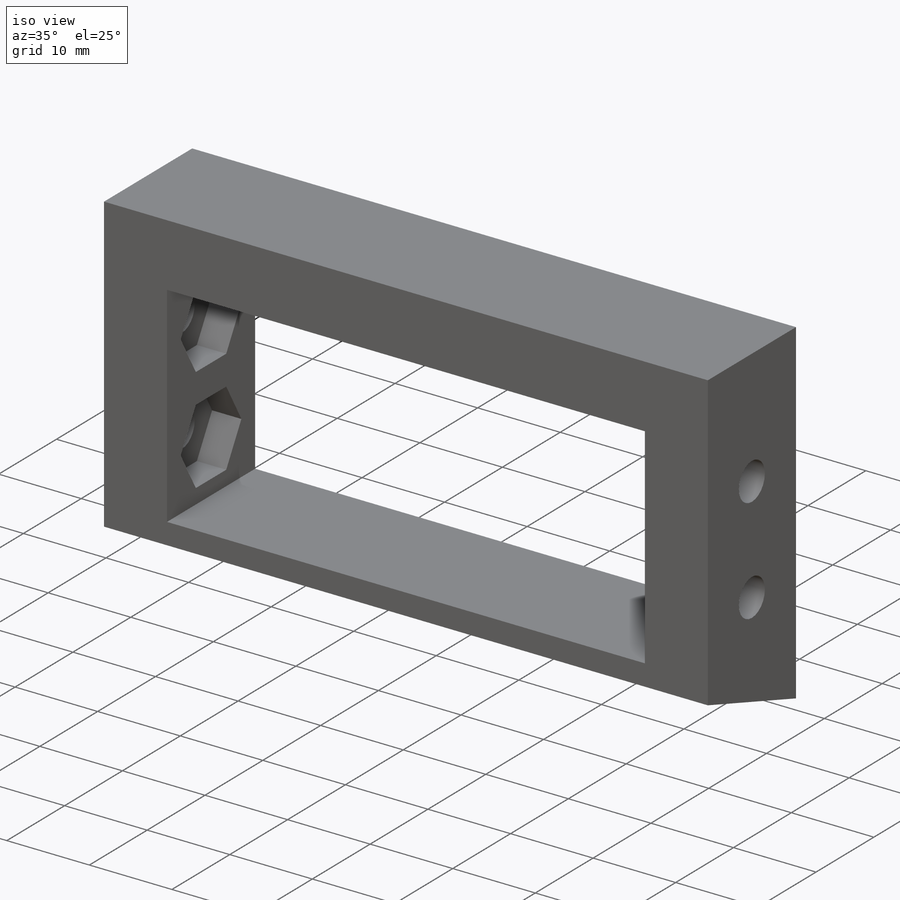
[diagram: iso view]
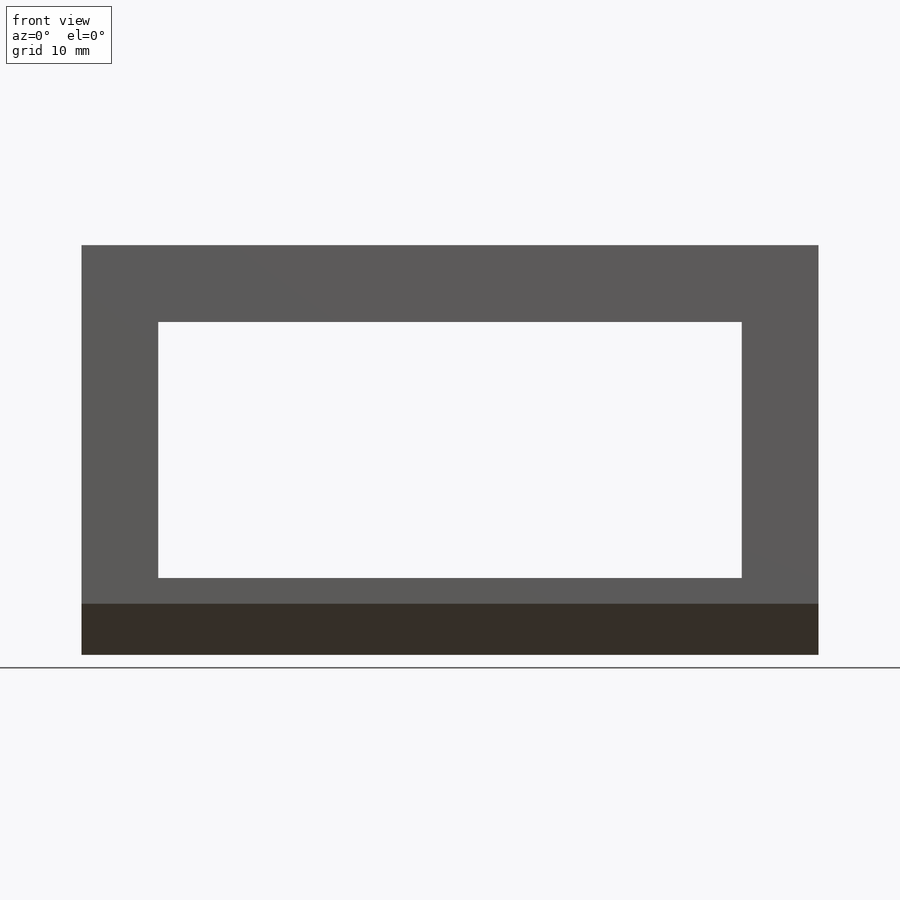
[diagram: front view]
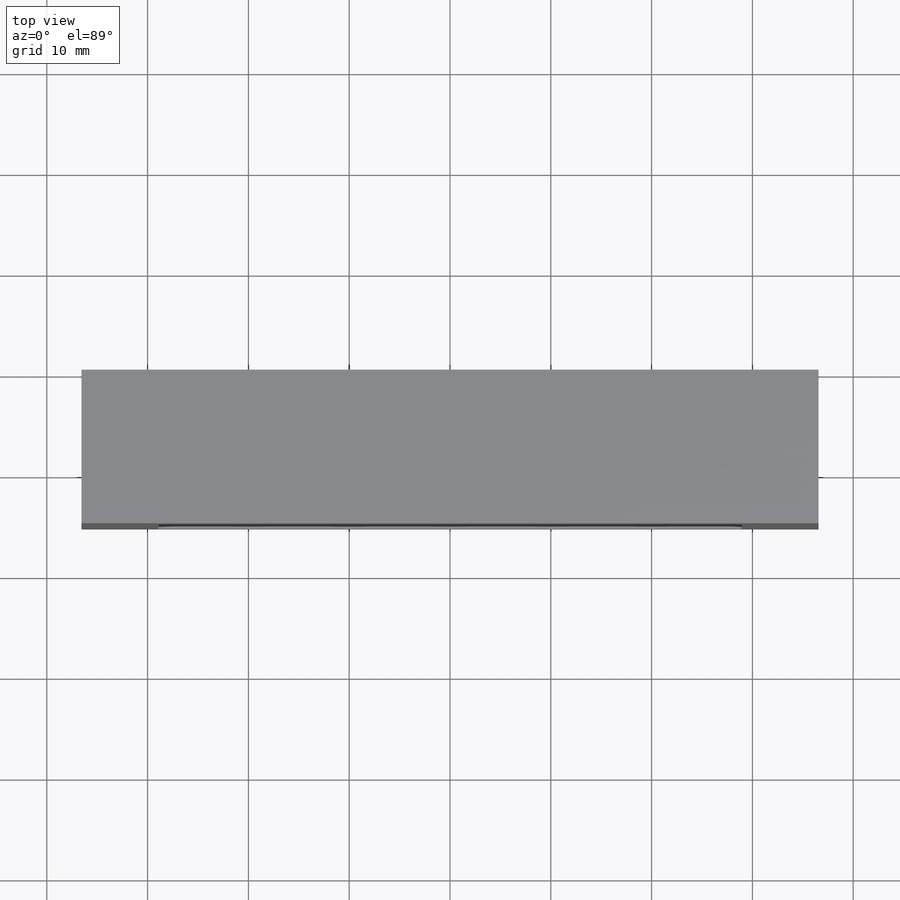
[diagram: top view]
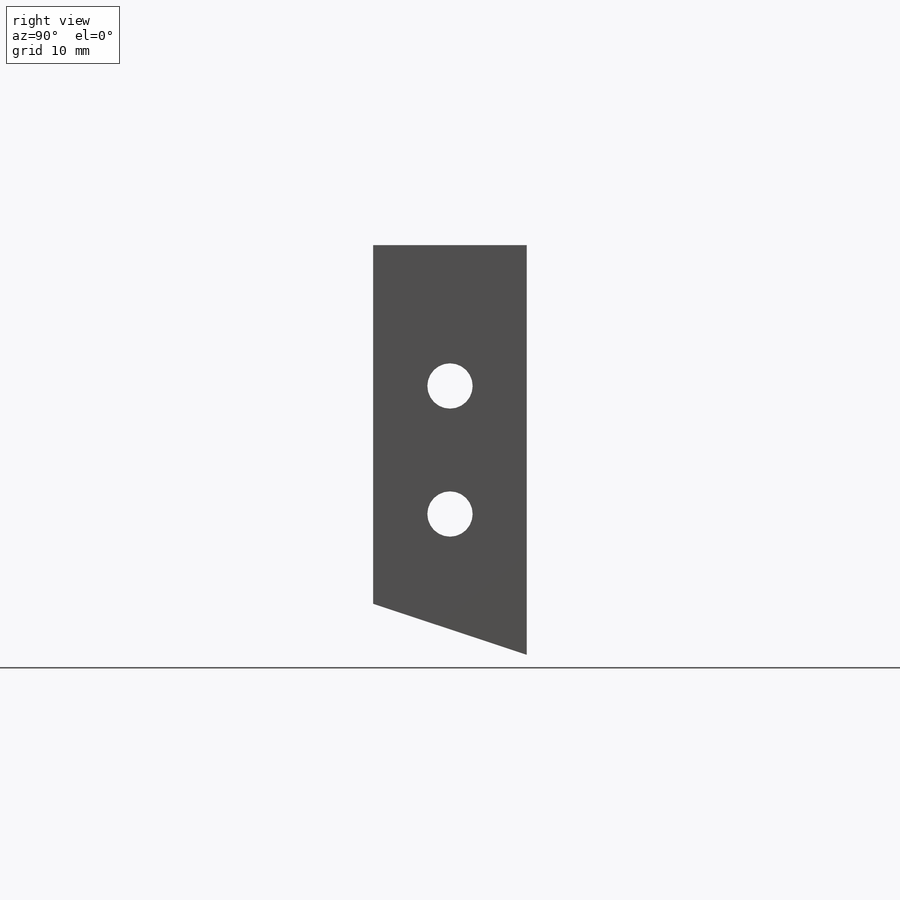
[diagram: right view]
SOLIDWORKS PART (.sldprt)
format: sldprt  version: not decoded by parser v0  size: 427,008 bytes
history: native  units: mm
features: sketch x7, cut_extrude x3, material x1, extrude x1, hole x1 (+13 scaffold rows collapsed)
feature tree (26):
  scaffold x13  (default folders/planes/origin — collapsed)
  material  "Material <not specified>"
  sketch  "Sketch1"  dims[D1=25.4mm D2=7.62mm D3=7.62mm]
  extrude  "Boss-Extrude1"  Depth=15.24mm
  sketch  "Sketch2"  dims[D1=12.7mm]
  hole  "#16 (0.177) Diameter Hole1"  Diameter=4.4958mm Depth=73.12mm
  sketch  "Sketch8"
  sketch  "Sketch7"  dims[hole-wizard template sketch: 60 standard entries collapsed; hole parameters kept: c18.Thru Hole Depth=73.12mm]
  sketch  "Sketch9"  dims[D1=8.509mm]
  cut_extrude  "Cut-Extrude2"  Depth=3.556mm
  sketch  "Sketch10"
  cut_extrude  "Cut-Extrude3"  Depth=3.556mm
  sketch  "Sketch11"
  cut_extrude  "Cut-Extrude4"  [1 undecoded]
decode coverage: 8 of 12 modeling features carry decoded parameters
note: ~ marks probable driven/reference dimensions
note: 1 parameter value undecoded
note: suppression state not decoded; provenance and decode notes live in map.json
